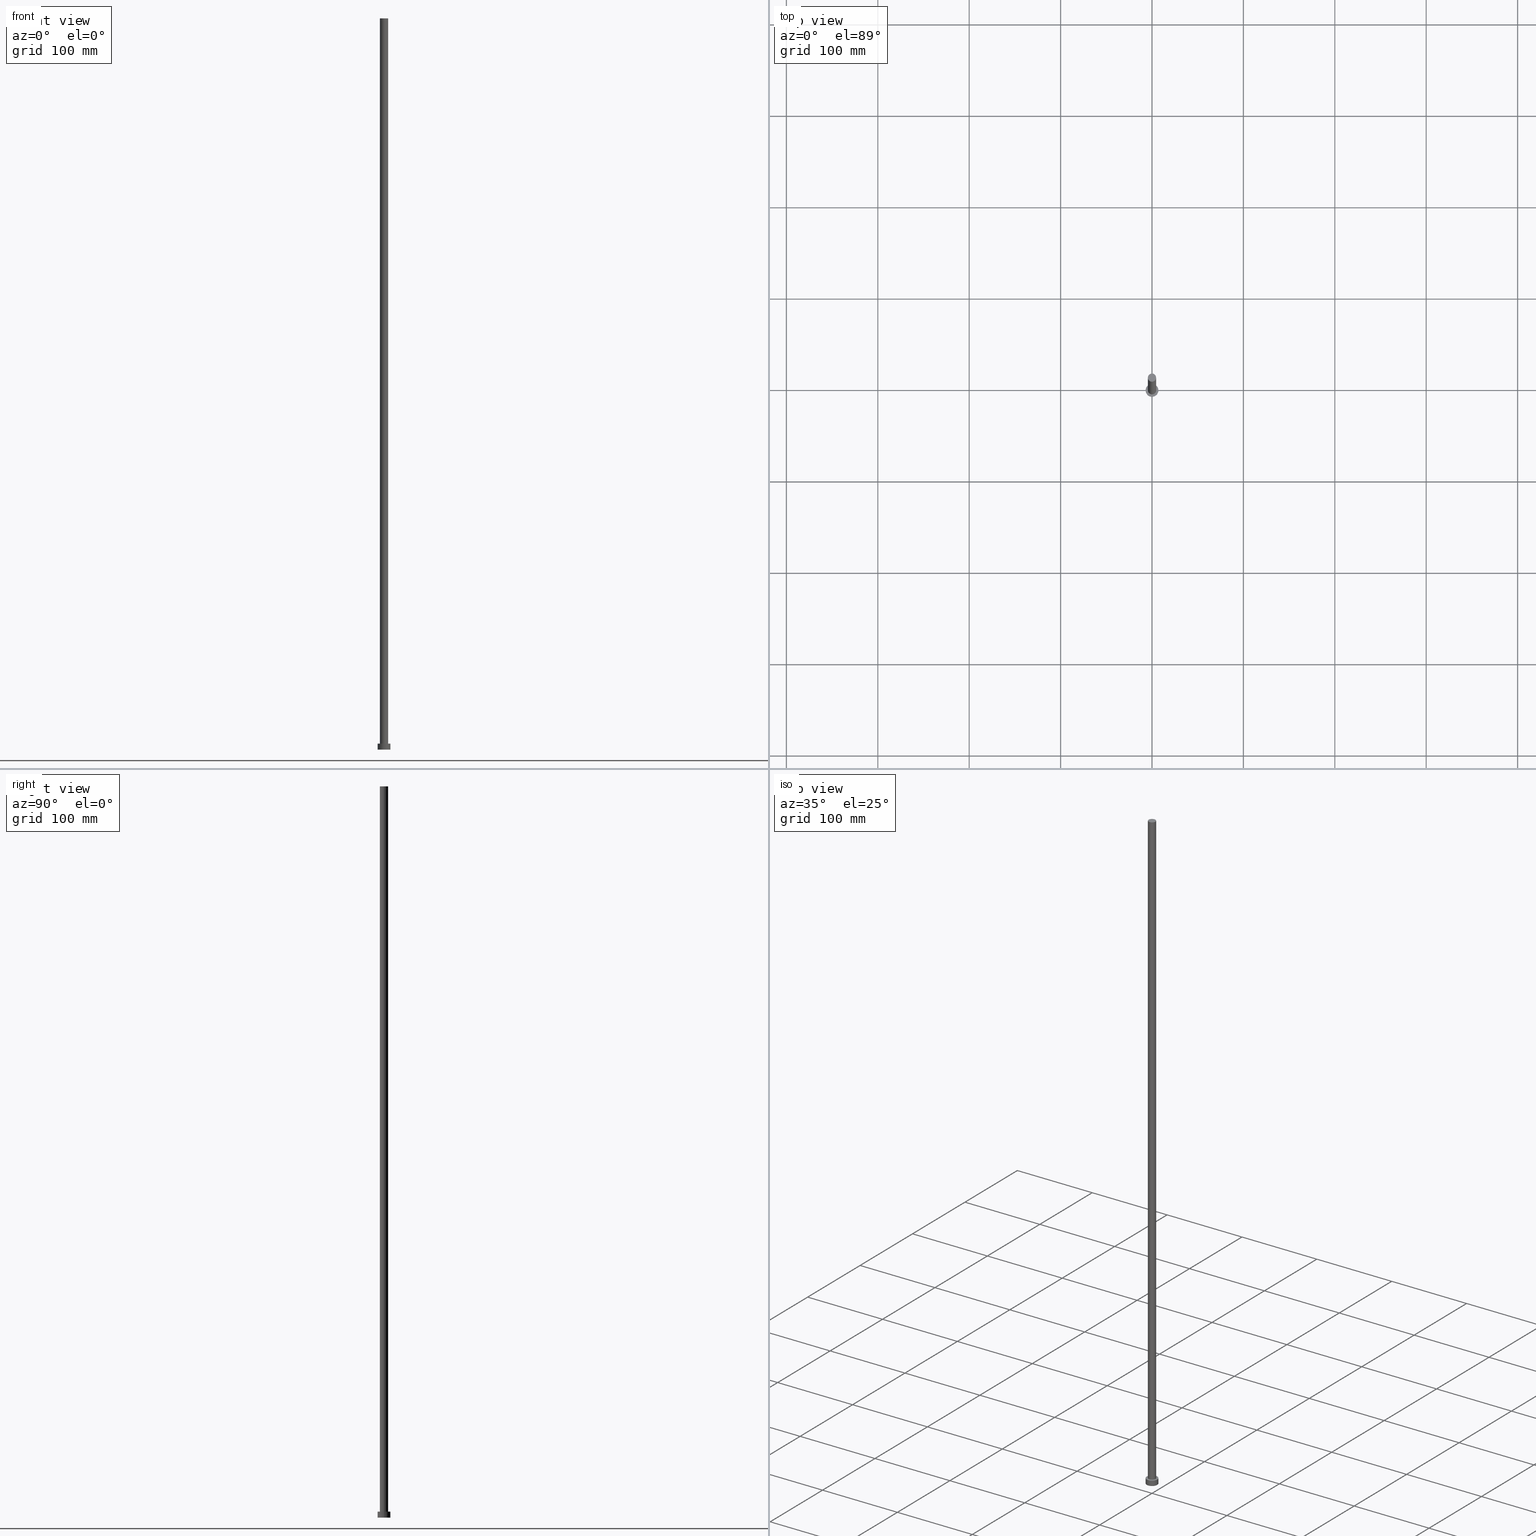
[diagram: canonical four-view strip — front | top / right | iso, engineering-drawing reading convention]
A machine part, canonical four-view strip (front | top / right | iso — engineering-drawing reading convention). The complete STEP part file that produces these views, byte-faithful:
ISO-10303-21;
HEADER;
FILE_DESCRIPTION (( 'STEP AP203' ),
    '1' );
FILE_NAME ('cd98.STEP',
    '2023-02-13T13:44:49',
    ( '' ),
    ( '' ),
    'SwSTEP 2.0',
    'SolidWorks 2019',
    '' );
FILE_SCHEMA (( 'CONFIG_CONTROL_DESIGN' ));
ENDSEC;

DATA;
#1 = PLANE ( 'NONE',  #195 ) ;
#2 = CARTESIAN_POINT ( 'NONE',  ( 0.000000000000000000, 0.000000000000000000, 6.500000000000000000 ) ) ;
#3 = CARTESIAN_POINT ( 'NONE',  ( 0.000000000000000000, 0.000000000000000000, 6.500000000000000000 ) ) ;
#4 = DIRECTION ( 'NONE',  ( 0.000000000000000000, 0.000000000000000000, 1.000000000000000000 ) ) ;
#5 = EDGE_CURVE ( 'NONE', #224, #68, #129, .T. ) ;
#6 = AXIS2_PLACEMENT_3D ( 'NONE', #24, #242, #101 ) ;
#7 = ORIENTED_EDGE ( 'NONE', *, *, #151, .T. ) ;
#8 = CYLINDRICAL_SURFACE ( 'NONE', #202, 7.000000000000000000 ) ;
#9 = ORIENTED_EDGE ( 'NONE', *, *, #158, .T. ) ;
#10 = VERTEX_POINT ( 'NONE', #193 ) ;
#11 = ORIENTED_EDGE ( 'NONE', *, *, #85, .T. ) ;
#12 = PERSON_AND_ORGANIZATION_ROLE ( 'creator' ) ;
#13 = CARTESIAN_POINT ( 'NONE',  ( 4.500000000000000888, 5.510910596163089556E-16, 799.9999999999998863 ) ) ;
#14 = LOCAL_TIME ( 14, 44, 49.00000000000000000, #49 ) ;
#15 = SECURITY_CLASSIFICATION_LEVEL ( 'unclassified' ) ;
#16 = ADVANCED_FACE ( 'NONE', ( #251 ), #211, .T. ) ;
#17 = DATE_AND_TIME ( #194, #55 ) ;
#18 = DIRECTION ( 'NONE',  ( 0.000000000000000000, 0.000000000000000000, 1.000000000000000000 ) ) ;
#19 = ORIENTED_EDGE ( 'NONE', *, *, #223, .F. ) ;
#20 = CARTESIAN_POINT ( 'NONE',  ( 0.000000000000000000, 0.000000000000000000, 799.9999999999998863 ) ) ;
#21 = ADVANCED_FACE ( 'NONE', ( #233 ), #72, .F. ) ;
#22 = FACE_BOUND ( 'NONE', #96, .T. ) ;
#23 = DIRECTION ( 'NONE',  ( -0.000000000000000000, -0.000000000000000000, -1.000000000000000000 ) ) ;
#24 = CARTESIAN_POINT ( 'NONE',  ( 0.000000000000000000, 0.000000000000000000, 0.000000000000000000 ) ) ;
#25 = AXIS2_PLACEMENT_3D ( 'NONE', #20, #32, #175 ) ;
#26 = CYLINDRICAL_SURFACE ( 'NONE', #142, 4.500000000000000888 ) ;
#27 = DESIGN_CONTEXT ( 'detailed design', #53, 'design' ) ;
#28 = VERTEX_POINT ( 'NONE', #47 ) ;
#29 = APPROVAL_STATUS ( 'not_yet_approved' ) ;
#30 = VECTOR ( 'NONE', #104, 1000.000000000000000 ) ;
#31 = CC_DESIGN_PERSON_AND_ORGANIZATION_ASSIGNMENT ( #66, #174, ( #58 ) ) ;
#32 = DIRECTION ( 'NONE',  ( -0.000000000000000000, -0.000000000000000000, -1.000000000000000000 ) ) ;
#33 = DATE_AND_TIME ( #152, #14 ) ;
#34 = CIRCLE ( 'NONE', #6, 7.000000000000000000 ) ;
#35 = ORIENTED_EDGE ( 'NONE', *, *, #143, .F. ) ;
#36 = CC_DESIGN_DATE_AND_TIME_ASSIGNMENT ( #75, #236, ( #58 ) ) ;
#37 = DIRECTION ( 'NONE',  ( -0.000000000000000000, -0.000000000000000000, -1.000000000000000000 ) ) ;
#38 = LINE ( 'NONE', #83, #69 ) ;
#39 = LINE ( 'NONE', #201, #30 ) ;
#40 = PRODUCT ( 'cd98', 'cd98', '', ( #45 ) ) ;
#41 = ORIENTED_EDGE ( 'NONE', *, *, #151, .F. ) ;
#42 = CIRCLE ( 'NONE', #150, 7.000000000000000000 ) ;
#43 = ORIENTED_EDGE ( 'NONE', *, *, #223, .T. ) ;
#44 =( NAMED_UNIT ( * ) SI_UNIT ( $, .STERADIAN. ) SOLID_ANGLE_UNIT ( ) );
#45 = MECHANICAL_CONTEXT ( 'NONE', #105, 'mechanical' ) ;
#46 = AXIS2_PLACEMENT_3D ( 'NONE', #2, #23, #186 ) ;
#47 = CARTESIAN_POINT ( 'NONE',  ( -4.500000000000000888, 0.000000000000000000, 6.500000000000000000 ) ) ;
#48 = DIRECTION ( 'NONE',  ( 0.000000000000000000, 0.000000000000000000, 1.000000000000000000 ) ) ;
#49 = COORDINATED_UNIVERSAL_TIME_OFFSET ( 1, 0, .AHEAD. ) ;
#50 = PERSON_AND_ORGANIZATION ( #61, #250 ) ;
#51 = CC_DESIGN_SECURITY_CLASSIFICATION ( #165, ( #159 ) ) ;
#52 = PERSON_AND_ORGANIZATION ( #61, #250 ) ;
#53 = APPLICATION_CONTEXT ( 'configuration controlled 3d designs of mechanical parts and assemblies' ) ;
#54 = EDGE_LOOP ( 'NONE', ( #117, #41, #184, #248 ) ) ;
#55 = LOCAL_TIME ( 14, 44, 49.00000000000000000, #216 ) ;
#56 = FACE_OUTER_BOUND ( 'NONE', #207, .T. ) ;
#57 = AXIS2_PLACEMENT_3D ( 'NONE', #212, #18, #238 ) ;
#58 = PRODUCT_DEFINITION ( 'NEZN�M�', '', #159, #27 ) ;
#59 = LOCAL_TIME ( 14, 44, 49.00000000000000000, #247 ) ;
#60 = CARTESIAN_POINT ( 'NONE',  ( 0.000000000000000000, 0.000000000000000000, 799.9999999999998863 ) ) ;
#61 = PERSON ( 'NEUR�EN�', 'NEUR�EN�', 'NEUR�EN�', ('NEUR�EN�'), ('NEUR�EN�'), ('NEUR�EN�') ) ;
#62 = DIRECTION ( 'NONE',  ( 0.000000000000000000, 0.000000000000000000, 1.000000000000000000 ) ) ;
#63 = EDGE_CURVE ( 'NONE', #10, #169, #156, .T. ) ;
#64 = APPROVAL_DATE_TIME ( #246, #185 ) ;
#65 = PRODUCT_DEFINITION_SHAPE ( 'NONE', 'NONE',  #58 ) ;
#66 = PERSON_AND_ORGANIZATION ( #61, #250 ) ;
#67 = ORIENTED_EDGE ( 'NONE', *, *, #85, .F. ) ;
#68 = VERTEX_POINT ( 'NONE', #131 ) ;
#69 = VECTOR ( 'NONE', #120, 1000.000000000000000 ) ;
#70 = PERSON_AND_ORGANIZATION ( #61, #250 ) ;
#71 = CLOSED_SHELL ( 'NONE', ( #228, #122, #168, #176, #21, #16, #113 ) ) ;
#72 = PLANE ( 'NONE',  #139 ) ;
#73 = PERSON_AND_ORGANIZATION_ROLE ( 'design_supplier' ) ;
#74 = PERSON_AND_ORGANIZATION ( #61, #250 ) ;
#75 = DATE_AND_TIME ( #118, #82 ) ;
#76 = DIRECTION ( 'NONE',  ( 0.000000000000000000, 0.000000000000000000, 1.000000000000000000 ) ) ;
#77 = EDGE_CURVE ( 'NONE', #68, #28, #240, .T. ) ;
#78 = CARTESIAN_POINT ( 'NONE',  ( 0.000000000000000000, 0.000000000000000000, 799.9999999999998863 ) ) ;
#79 = AXIS2_PLACEMENT_3D ( 'NONE', #180, #4, #125 ) ;
#80 = CARTESIAN_POINT ( 'NONE',  ( 0.000000000000000000, 0.000000000000000000, 6.500000000000000000 ) ) ;
#81 = CARTESIAN_POINT ( 'NONE',  ( 0.000000000000000000, 0.000000000000000000, 799.9999999999998863 ) ) ;
#82 = LOCAL_TIME ( 14, 44, 49.00000000000000000, #160 ) ;
#83 = CARTESIAN_POINT ( 'NONE',  ( -7.000000000000000000, 0.000000000000000000, 6.500000000000000000 ) ) ;
#84 = ORIENTED_EDGE ( 'NONE', *, *, #63, .T. ) ;
#85 = EDGE_CURVE ( 'NONE', #149, #224, #115, .T. ) ;
#86 = ORIENTED_EDGE ( 'NONE', *, *, #179, .F. ) ;
#87 = ORIENTED_EDGE ( 'NONE', *, *, #179, .T. ) ;
#88 = DATE_TIME_ROLE ( 'classification_date' ) ;
#89 = CARTESIAN_POINT ( 'NONE',  ( 0.000000000000000000, 0.000000000000000000, 799.9999999999998863 ) ) ;
#90 = CC_DESIGN_APPROVAL ( #237, ( #159 ) ) ;
#91 = VECTOR ( 'NONE', #191, 1000.000000000000000 ) ;
#92 = CC_DESIGN_PERSON_AND_ORGANIZATION_ASSIGNMENT ( #74, #154, ( #40 ) ) ;
#93 = UNCERTAINTY_MEASURE_WITH_UNIT (LENGTH_MEASURE( 1.000000000000000082E-05 ), #188, 'distance_accuracy_value', 'NONE');
#94 = APPROVAL_DATE_TIME ( #17, #237 ) ;
#95 = EDGE_CURVE ( 'NONE', #153, #169, #163, .T. ) ;
#96 = EDGE_LOOP ( 'NONE', ( #19, #108 ) ) ;
#97 = CARTESIAN_POINT ( 'NONE',  ( 0.000000000000000000, 0.000000000000000000, 0.000000000000000000 ) ) ;
#98 = ORIENTED_EDGE ( 'NONE', *, *, #190, .F. ) ;
#99 = DIRECTION ( 'NONE',  ( 1.000000000000000000, 0.000000000000000000, -0.000000000000000000 ) ) ;
#100 = FACE_OUTER_BOUND ( 'NONE', #54, .T. ) ;
#101 = DIRECTION ( 'NONE',  ( 1.000000000000000000, 0.000000000000000000, 0.000000000000000000 ) ) ;
#102 = AXIS2_PLACEMENT_3D ( 'NONE', #148, #171, #206 ) ;
#103 = VECTOR ( 'NONE', #112, 1000.000000000000000 ) ;
#104 = DIRECTION ( 'NONE',  ( -0.000000000000000000, -0.000000000000000000, -1.000000000000000000 ) ) ;
#105 = APPLICATION_CONTEXT ( 'configuration controlled 3d designs of mechanical parts and assemblies' ) ;
#106 = ORIENTED_EDGE ( 'NONE', *, *, #234, .F. ) ;
#107 = APPROVAL_ROLE ( '' ) ;
#108 = ORIENTED_EDGE ( 'NONE', *, *, #77, .F. ) ;
#109 = AXIS2_PLACEMENT_3D ( 'NONE', #60, #241, #221 ) ;
#110 = APPLICATION_PROTOCOL_DEFINITION ( 'international standard', 'config_control_design', 1994, #105 ) ;
#111 = APPROVAL_STATUS ( 'not_yet_approved' ) ;
#112 = DIRECTION ( 'NONE',  ( -0.000000000000000000, -0.000000000000000000, -1.000000000000000000 ) ) ;
#113 = ADVANCED_FACE ( 'NONE', ( #197 ), #1, .T. ) ;
#114 = DIRECTION ( 'NONE',  ( 1.000000000000000000, 0.000000000000000000, -0.000000000000000000 ) ) ;
#115 = CIRCLE ( 'NONE', #192, 4.500000000000000888 ) ;
#116 = DIRECTION ( 'NONE',  ( 1.000000000000000000, 0.000000000000000000, 0.000000000000000000 ) ) ;
#117 = ORIENTED_EDGE ( 'NONE', *, *, #63, .F. ) ;
#118 = CALENDAR_DATE ( 2023, 13, 2 ) ;
#119 = DIRECTION ( 'NONE',  ( -1.000000000000000000, 0.000000000000000000, 0.000000000000000000 ) ) ;
#120 = DIRECTION ( 'NONE',  ( -0.000000000000000000, -0.000000000000000000, -1.000000000000000000 ) ) ;
#121 = CARTESIAN_POINT ( 'NONE',  ( -7.000000000000000000, 0.000000000000000000, 0.000000000000000000 ) ) ;
#122 = ADVANCED_FACE ( 'NONE', ( #56 ), #138, .T. ) ;
#123 = APPROVAL_PERSON_ORGANIZATION ( #50, #196, #214 ) ;
#124 = EDGE_LOOP ( 'NONE', ( #11, #87 ) ) ;
#125 = DIRECTION ( 'NONE',  ( 1.000000000000000000, 0.000000000000000000, 0.000000000000000000 ) ) ;
#126 = ORIENTED_EDGE ( 'NONE', *, *, #95, .F. ) ;
#127 = ORIENTED_EDGE ( 'NONE', *, *, #234, .T. ) ;
#128 = PERSON_AND_ORGANIZATION ( #61, #250 ) ;
#129 = LINE ( 'NONE', #13, #103 ) ;
#130 = CC_DESIGN_PERSON_AND_ORGANIZATION_ASSIGNMENT ( #70, #73, ( #159 ) ) ;
#131 = CARTESIAN_POINT ( 'NONE',  ( 4.500000000000000888, 5.510910596163089556E-16, 6.500000000000000000 ) ) ;
#132 = PERSON_AND_ORGANIZATION ( #61, #250 ) ;
#133 = CC_DESIGN_DATE_AND_TIME_ASSIGNMENT ( #230, #88, ( #165 ) ) ;
#134 = APPROVAL_ROLE ( '' ) ;
#135 = APPROVAL_STATUS ( 'not_yet_approved' ) ;
#136 = ORIENTED_EDGE ( 'NONE', *, *, #143, .T. ) ;
#137 = APPROVAL_PERSON_ORGANIZATION ( #52, #237, #134 ) ;
#138 = CYLINDRICAL_SURFACE ( 'NONE', #46, 7.000000000000000000 ) ;
#139 = AXIS2_PLACEMENT_3D ( 'NONE', #97, #48, #114 ) ;
#140 = DIRECTION ( 'NONE',  ( 0.000000000000000000, 0.000000000000000000, 1.000000000000000000 ) ) ;
#141 = DIRECTION ( 'NONE',  ( 1.000000000000000000, 0.000000000000000000, 0.000000000000000000 ) ) ;
#142 = AXIS2_PLACEMENT_3D ( 'NONE', #81, #162, #164 ) ;
#143 = EDGE_CURVE ( 'NONE', #169, #153, #34, .T. ) ;
#144 = CARTESIAN_POINT ( 'NONE',  ( -7.000000000000000000, 0.000000000000000000, 6.500000000000000000 ) ) ;
#145 = ORIENTED_EDGE ( 'NONE', *, *, #77, .T. ) ;
#146 = CARTESIAN_POINT ( 'NONE',  ( 7.000000000000000000, 8.572527594031471218E-16, 0.000000000000000000 ) ) ;
#147 = VERTEX_POINT ( 'NONE', #144 ) ;
#148 = CARTESIAN_POINT ( 'NONE',  ( 0.000000000000000000, 0.000000000000000000, 0.000000000000000000 ) ) ;
#149 = VERTEX_POINT ( 'NONE', #178 ) ;
#150 = AXIS2_PLACEMENT_3D ( 'NONE', #3, #199, #183 ) ;
#151 = EDGE_CURVE ( 'NONE', #147, #10, #42, .T. ) ;
#152 = CALENDAR_DATE ( 2023, 13, 2 ) ;
#153 = VERTEX_POINT ( 'NONE', #121 ) ;
#154 = PERSON_AND_ORGANIZATION_ROLE ( 'design_owner' ) ;
#155 = CIRCLE ( 'NONE', #79, 4.500000000000000888 ) ;
#156 = LINE ( 'NONE', #173, #91 ) ;
#157 = DIRECTION ( 'NONE',  ( 0.000000000000000000, 0.000000000000000000, 1.000000000000000000 ) ) ;
#158 = EDGE_CURVE ( 'NONE', #10, #147, #220, .T. ) ;
#159 = PRODUCT_DEFINITION_FORMATION_WITH_SPECIFIED_SOURCE ( 'LIBOVOLN�', '', #40, .NOT_KNOWN. ) ;
#160 = COORDINATED_UNIVERSAL_TIME_OFFSET ( 1, 0, .AHEAD. ) ;
#161 = FACE_OUTER_BOUND ( 'NONE', #205, .T. ) ;
#162 = DIRECTION ( 'NONE',  ( -0.000000000000000000, -0.000000000000000000, -1.000000000000000000 ) ) ;
#163 = CIRCLE ( 'NONE', #254, 7.000000000000000000 ) ;
#164 = DIRECTION ( 'NONE',  ( -1.000000000000000000, 0.000000000000000000, 0.000000000000000000 ) ) ;
#165 = SECURITY_CLASSIFICATION ( '', '', #15 ) ;
#166 = COORDINATED_UNIVERSAL_TIME_OFFSET ( 1, 0, .AHEAD. ) ;
#167 = EDGE_LOOP ( 'NONE', ( #86, #187, #145, #106 ) ) ;
#168 = ADVANCED_FACE ( 'NONE', ( #100 ), #8, .T. ) ;
#169 = VERTEX_POINT ( 'NONE', #146 ) ;
#170 = CALENDAR_DATE ( 2023, 13, 2 ) ;
#171 = DIRECTION ( 'NONE',  ( 0.000000000000000000, 0.000000000000000000, 1.000000000000000000 ) ) ;
#172 = CC_DESIGN_APPROVAL ( #185, ( #58 ) ) ;
#173 = CARTESIAN_POINT ( 'NONE',  ( 7.000000000000000000, 8.572527594031471218E-16, 6.500000000000000000 ) ) ;
#174 = PERSON_AND_ORGANIZATION_ROLE ( 'creator' ) ;
#175 = DIRECTION ( 'NONE',  ( -1.000000000000000000, 0.000000000000000000, 0.000000000000000000 ) ) ;
#176 = ADVANCED_FACE ( 'NONE', ( #22, #161 ), #181, .T. ) ;
#177 = APPROVAL_PERSON_ORGANIZATION ( #132, #185, #107 ) ;
#178 = CARTESIAN_POINT ( 'NONE',  ( -4.500000000000000888, 0.000000000000000000, 799.9999999999998863 ) ) ;
#179 = EDGE_CURVE ( 'NONE', #224, #149, #231, .T. ) ;
#180 = CARTESIAN_POINT ( 'NONE',  ( 0.000000000000000000, 0.000000000000000000, 6.500000000000000000 ) ) ;
#181 = PLANE ( 'NONE',  #244 ) ;
#182 = AXIS2_PLACEMENT_3D ( 'NONE', #200, #140, #141 ) ;
#183 = DIRECTION ( 'NONE',  ( 1.000000000000000000, 0.000000000000000000, 0.000000000000000000 ) ) ;
#184 = ORIENTED_EDGE ( 'NONE', *, *, #190, .T. ) ;
#185 = APPROVAL ( #29, 'NEUR�EN�' ) ;
#186 = DIRECTION ( 'NONE',  ( -1.000000000000000000, 0.000000000000000000, 0.000000000000000000 ) ) ;
#187 = ORIENTED_EDGE ( 'NONE', *, *, #5, .T. ) ;
#188 =( LENGTH_UNIT ( ) NAMED_UNIT ( * ) SI_UNIT ( .MILLI., .METRE. ) );
#189 = SHAPE_DEFINITION_REPRESENTATION ( #65, #253 ) ;
#190 = EDGE_CURVE ( 'NONE', #147, #153, #38, .T. ) ;
#191 = DIRECTION ( 'NONE',  ( -0.000000000000000000, -0.000000000000000000, -1.000000000000000000 ) ) ;
#192 = AXIS2_PLACEMENT_3D ( 'NONE', #89, #255, #198 ) ;
#193 = CARTESIAN_POINT ( 'NONE',  ( 7.000000000000000000, 8.572527594031471218E-16, 6.500000000000000000 ) ) ;
#194 = CALENDAR_DATE ( 2023, 13, 2 ) ;
#195 = AXIS2_PLACEMENT_3D ( 'NONE', #78, #157, #239 ) ;
#196 = APPROVAL ( #111, 'NEUR�EN�' ) ;
#197 = FACE_OUTER_BOUND ( 'NONE', #124, .T. ) ;
#198 = DIRECTION ( 'NONE',  ( 1.000000000000000000, 0.000000000000000000, 0.000000000000000000 ) ) ;
#199 = DIRECTION ( 'NONE',  ( 0.000000000000000000, 0.000000000000000000, 1.000000000000000000 ) ) ;
#200 = CARTESIAN_POINT ( 'NONE',  ( 0.000000000000000000, 0.000000000000000000, 6.500000000000000000 ) ) ;
#201 = CARTESIAN_POINT ( 'NONE',  ( -4.500000000000000888, 0.000000000000000000, 799.9999999999998863 ) ) ;
#202 = AXIS2_PLACEMENT_3D ( 'NONE', #80, #37, #119 ) ;
#203 = PRODUCT_RELATED_PRODUCT_CATEGORY ( 'detail', '', ( #40 ) ) ;
#204 = FACE_OUTER_BOUND ( 'NONE', #167, .T. ) ;
#205 = EDGE_LOOP ( 'NONE', ( #7, #9 ) ) ;
#206 = DIRECTION ( 'NONE',  ( 1.000000000000000000, 0.000000000000000000, 0.000000000000000000 ) ) ;
#207 = EDGE_LOOP ( 'NONE', ( #227, #84, #136, #98 ) ) ;
#208 = CC_DESIGN_PERSON_AND_ORGANIZATION_ASSIGNMENT ( #128, #12, ( #159 ) ) ;
#209 =( NAMED_UNIT ( * ) PLANE_ANGLE_UNIT ( ) SI_UNIT ( $, .RADIAN. ) );
#210 = APPROVAL_DATE_TIME ( #33, #196 ) ;
#211 = CYLINDRICAL_SURFACE ( 'NONE', #25, 4.500000000000000888 ) ;
#212 = CARTESIAN_POINT ( 'NONE',  ( 0.000000000000000000, 0.000000000000000000, 6.500000000000000000 ) ) ;
#213 = PERSON_AND_ORGANIZATION_ROLE ( 'classification_officer' ) ;
#214 = APPROVAL_ROLE ( '' ) ;
#215 = CALENDAR_DATE ( 2023, 13, 2 ) ;
#216 = COORDINATED_UNIVERSAL_TIME_OFFSET ( 1, 0, .AHEAD. ) ;
#217 = CARTESIAN_POINT ( 'NONE',  ( 0.000000000000000000, 0.000000000000000000, 0.000000000000000000 ) ) ;
#218 =( GEOMETRIC_REPRESENTATION_CONTEXT ( 3 ) GLOBAL_UNCERTAINTY_ASSIGNED_CONTEXT ( ( #93 ) ) GLOBAL_UNIT_ASSIGNED_CONTEXT ( ( #188, #209, #44 ) ) REPRESENTATION_CONTEXT ( 'NONE', 'WORKASPACE' ) );
#219 = ORIENTED_EDGE ( 'NONE', *, *, #5, .F. ) ;
#220 = CIRCLE ( 'NONE', #182, 7.000000000000000000 ) ;
#221 = DIRECTION ( 'NONE',  ( 1.000000000000000000, 0.000000000000000000, 0.000000000000000000 ) ) ;
#222 = CARTESIAN_POINT ( 'NONE',  ( 4.500000000000000888, 5.510910596163089556E-16, 799.9999999999998863 ) ) ;
#223 = EDGE_CURVE ( 'NONE', #28, #68, #155, .T. ) ;
#224 = VERTEX_POINT ( 'NONE', #222 ) ;
#225 = CC_DESIGN_APPROVAL ( #196, ( #165 ) ) ;
#226 = MANIFOLD_SOLID_BREP ( 'P�idat vysunut�m3', #71 ) ;
#227 = ORIENTED_EDGE ( 'NONE', *, *, #158, .F. ) ;
#228 = ADVANCED_FACE ( 'NONE', ( #204 ), #26, .T. ) ;
#229 = EDGE_LOOP ( 'NONE', ( #126, #35 ) ) ;
#230 = DATE_AND_TIME ( #170, #59 ) ;
#231 = CIRCLE ( 'NONE', #109, 4.500000000000000888 ) ;
#232 = LOCAL_TIME ( 14, 44, 49.00000000000000000, #166 ) ;
#233 = FACE_OUTER_BOUND ( 'NONE', #229, .T. ) ;
#234 = EDGE_CURVE ( 'NONE', #149, #28, #39, .T. ) ;
#235 = APPLICATION_PROTOCOL_DEFINITION ( 'international standard', 'config_control_design', 1994, #53 ) ;
#236 = DATE_TIME_ROLE ( 'creation_date' ) ;
#237 = APPROVAL ( #135, 'NEUR�EN�' ) ;
#238 = DIRECTION ( 'NONE',  ( 1.000000000000000000, 0.000000000000000000, 0.000000000000000000 ) ) ;
#239 = DIRECTION ( 'NONE',  ( 1.000000000000000000, 0.000000000000000000, -0.000000000000000000 ) ) ;
#240 = CIRCLE ( 'NONE', #57, 4.500000000000000888 ) ;
#241 = DIRECTION ( 'NONE',  ( 0.000000000000000000, 0.000000000000000000, 1.000000000000000000 ) ) ;
#242 = DIRECTION ( 'NONE',  ( 0.000000000000000000, 0.000000000000000000, 1.000000000000000000 ) ) ;
#243 = CARTESIAN_POINT ( 'NONE',  ( 0.000000000000000000, 0.000000000000000000, 6.500000000000000000 ) ) ;
#244 = AXIS2_PLACEMENT_3D ( 'NONE', #243, #62, #99 ) ;
#245 = EDGE_LOOP ( 'NONE', ( #219, #67, #127, #43 ) ) ;
#246 = DATE_AND_TIME ( #215, #232 ) ;
#247 = COORDINATED_UNIVERSAL_TIME_OFFSET ( 1, 0, .AHEAD. ) ;
#248 = ORIENTED_EDGE ( 'NONE', *, *, #95, .T. ) ;
#249 = PERSON_AND_ORGANIZATION ( #61, #250 ) ;
#250 = ORGANIZATION ( 'NEUR�EN�', 'NEUR�EN�', '' ) ;
#251 = FACE_OUTER_BOUND ( 'NONE', #245, .T. ) ;
#252 = CC_DESIGN_PERSON_AND_ORGANIZATION_ASSIGNMENT ( #249, #213, ( #165 ) ) ;
#253 = ADVANCED_BREP_SHAPE_REPRESENTATION ( 'cd98', ( #226, #102 ), #218 ) ;
#254 = AXIS2_PLACEMENT_3D ( 'NONE', #217, #76, #116 ) ;
#255 = DIRECTION ( 'NONE',  ( 0.000000000000000000, 0.000000000000000000, 1.000000000000000000 ) ) ;
ENDSEC;
END-ISO-10303-21;
